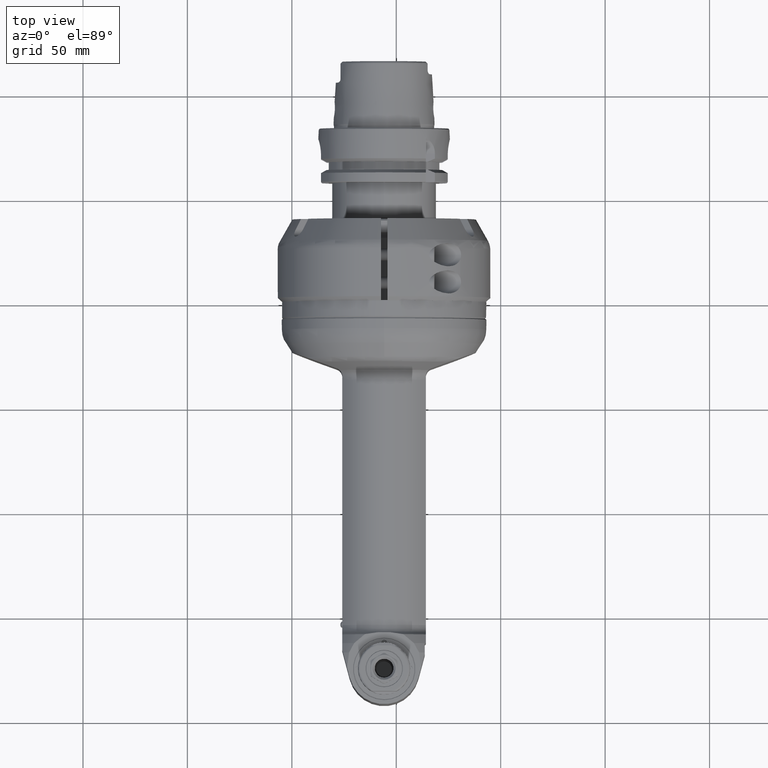
[diagram: clean part render]
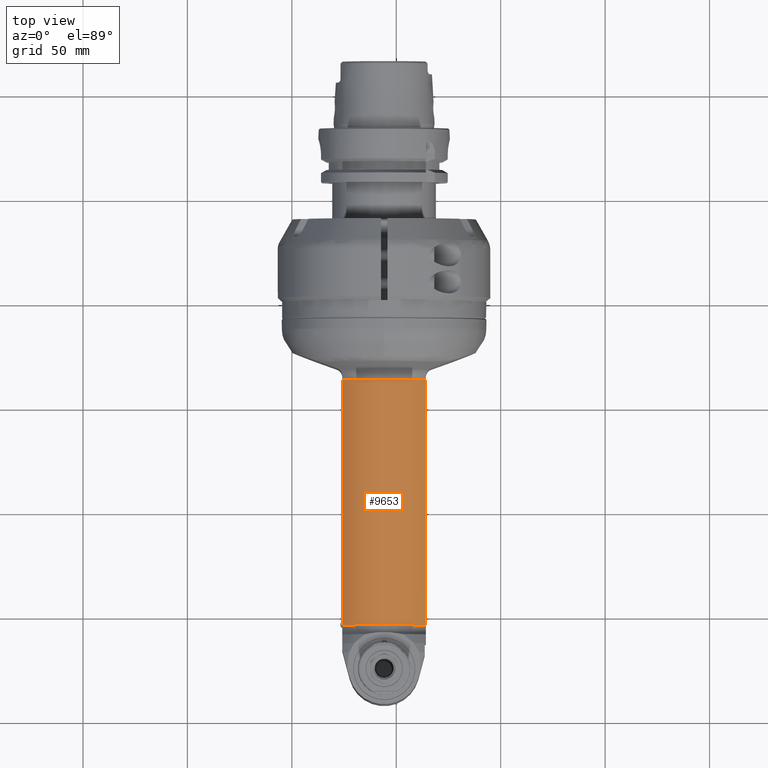
[diagram: same view with one face highlighted and labeled with its STEP entity id]
A machine part, top view. The second image highlights one B-rep face of the part: STEP entity #9653.
In plain terms, the highlighted cylindrical surface (partial cylindrical patch) has radius 25.5 mm, axis along (0, 1, 0).
Its self-contained STEP definition (entity closure, byte-faithful):
#1504=FACE_OUTER_BOUND('',#2110,.T.);
#2110=EDGE_LOOP('',(#8319,#8320,#8321,#8322));
#2764=LINE('',#46761,#3378);
#2771=LINE('',#46848,#3385);
#3378=VECTOR('',#12954,117.4166943204);
#3385=VECTOR('',#12973,117.4166943204);
#3846=CIRCLE('',#10750,25.5);
#3847=CIRCLE('',#10751,25.5);
#4656=VERTEX_POINT('',#46759);
#4657=VERTEX_POINT('',#46760);
#4674=VERTEX_POINT('',#46845);
#4675=VERTEX_POINT('',#46847);
#5914=EDGE_CURVE('',#4656,#4657,#2764,.T.);
#5933=EDGE_CURVE('',#4674,#4657,#3846,.T.);
#5934=EDGE_CURVE('',#4674,#4675,#2771,.T.);
#5935=EDGE_CURVE('',#4656,#4675,#3847,.T.);
#8319=ORIENTED_EDGE('',*,*,#5914,.T.);
#8320=ORIENTED_EDGE('',*,*,#5933,.F.);
#8321=ORIENTED_EDGE('',*,*,#5934,.T.);
#8322=ORIENTED_EDGE('',*,*,#5935,.F.);
#9222=CYLINDRICAL_SURFACE('',#10749,25.5);
#9653=ADVANCED_FACE('',(#1504),#9222,.T.);
#10749=AXIS2_PLACEMENT_3D('',#46844,#12969,#12970);
#10750=AXIS2_PLACEMENT_3D('',#46846,#12971,#12972);
#10751=AXIS2_PLACEMENT_3D('',#46849,#12974,#12975);
#12954=DIRECTION('',(-1.,0.,0.));
#12969=DIRECTION('center_axis',(-1.,0.,0.));
#12970=DIRECTION('ref_axis',(0.,-0.83292124071012,0.553391549243313));
#12971=DIRECTION('center_axis',(-1.,0.,0.));
#12972=DIRECTION('ref_axis',(0.,-0.83292124071012,0.553391549243313));
#12973=DIRECTION('',(1.,0.,0.));
#12974=DIRECTION('center_axis',(1.,0.,0.));
#12975=DIRECTION('ref_axis',(0.,-0.83292124071012,0.553391549243313));
#46759=CARTESIAN_POINT('',(185.9177317978,-15.81929201956,20.));
#46760=CARTESIAN_POINT('',(68.50103747742,-15.81929201956,20.));
#46761=CARTESIAN_POINT('',(185.9177317978,-15.81929201956,20.));
#46844=CARTESIAN_POINT('Origin',(127.2093846376,0.,0.));
#46845=CARTESIAN_POINT('',(68.50103747742,-15.81929201956,-20.));
#46846=CARTESIAN_POINT('Origin',(68.50103747742,0.,0.));
#46847=CARTESIAN_POINT('',(185.9177317978,-15.81929201956,-20.));
#46848=CARTESIAN_POINT('',(68.50103747742,-15.81929201956,-20.));
#46849=CARTESIAN_POINT('Origin',(185.9177317978,0.,0.));